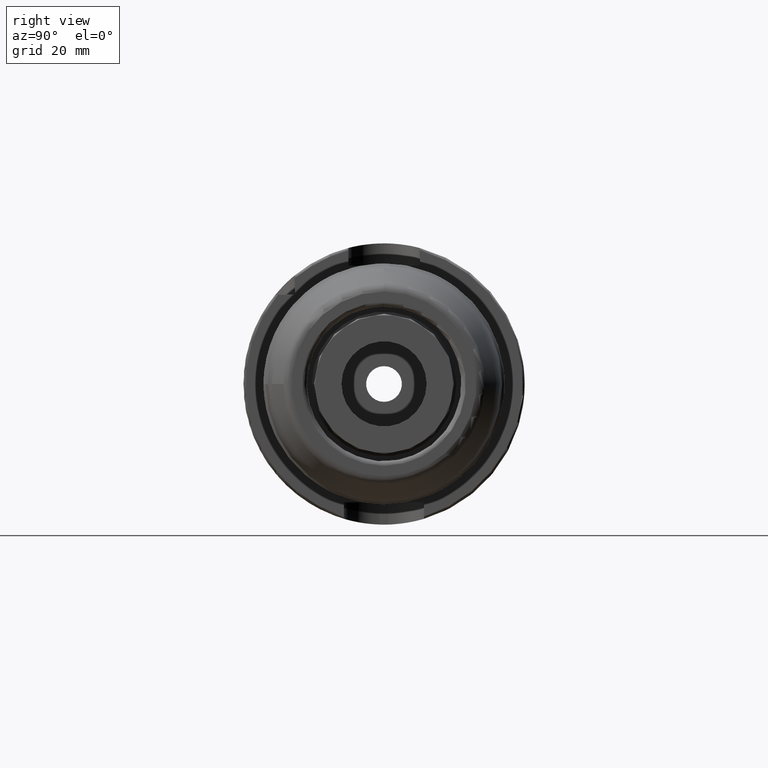
[diagram: clean part render]
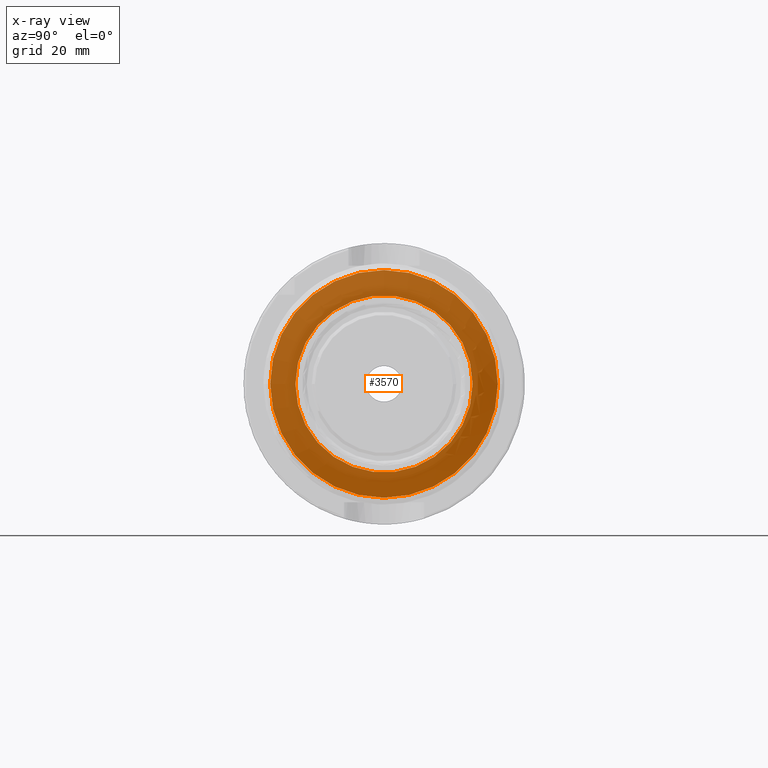
[diagram: x-ray — body ghosted, one internal face saturated and labeled with its STEP entity id]
A machine part, right view, then the same camera in x-ray: the body is ghosted and one INTERNAL B-rep face — a face not visible from any outside direction — is saturated and labeled: STEP entity #3570.
In plain terms, the highlighted planar face has unit normal (-1, 0, -0).
Its self-contained STEP definition (entity closure, byte-faithful):
#283=FACE_BOUND('',#762,.T.);
#353=PLANE('',#4011);
#542=FACE_OUTER_BOUND('',#761,.T.);
#761=EDGE_LOOP('',(#3242));
#762=EDGE_LOOP('',(#3243));
#1314=CIRCLE('',#4008,19.85);
#1317=CIRCLE('',#4012,25.5);
#1674=VERTEX_POINT('',#8521);
#1677=VERTEX_POINT('',#8529);
#2200=EDGE_CURVE('',#1674,#1674,#1314,.T.);
#2204=EDGE_CURVE('',#1677,#1677,#1317,.T.);
#3242=ORIENTED_EDGE('',*,*,#2204,.F.);
#3243=ORIENTED_EDGE('',*,*,#2200,.F.);
#3570=ADVANCED_FACE('',(#542,#283),#353,.T.);
#4008=AXIS2_PLACEMENT_3D('',#8522,#4920,#4921);
#4011=AXIS2_PLACEMENT_3D('',#8528,#4927,#4928);
#4012=AXIS2_PLACEMENT_3D('',#8530,#4929,#4930);
#4920=DIRECTION('center_axis',(-1.,0.,0.));
#4921=DIRECTION('ref_axis',(0.,-1.,0.));
#4927=DIRECTION('center_axis',(-1.,0.,0.));
#4928=DIRECTION('ref_axis',(0.,0.,1.));
#4929=DIRECTION('center_axis',(1.,0.,0.));
#4930=DIRECTION('ref_axis',(0.,-1.,1.83697019872103E-16));
#8521=CARTESIAN_POINT('',(0.,19.85,-2.4309238963075E-15));
#8522=CARTESIAN_POINT('Origin',(0.,0.,0.));
#8528=CARTESIAN_POINT('Origin',(0.,26.5,0.));
#8529=CARTESIAN_POINT('',(0.,-3.12284933782575E-15,25.5));
#8530=CARTESIAN_POINT('Origin',(0.,0.,0.));